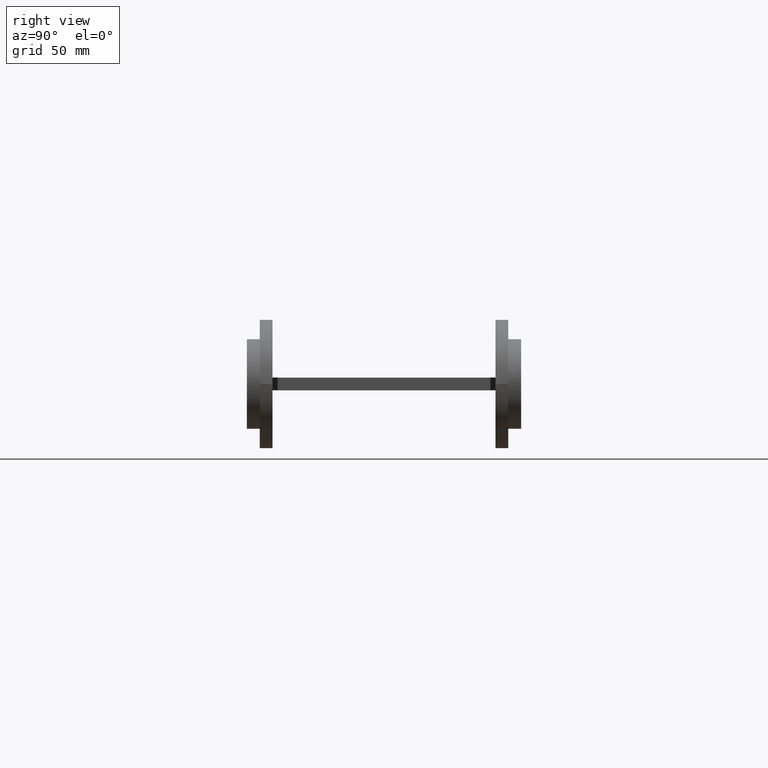
[diagram: clean part render]
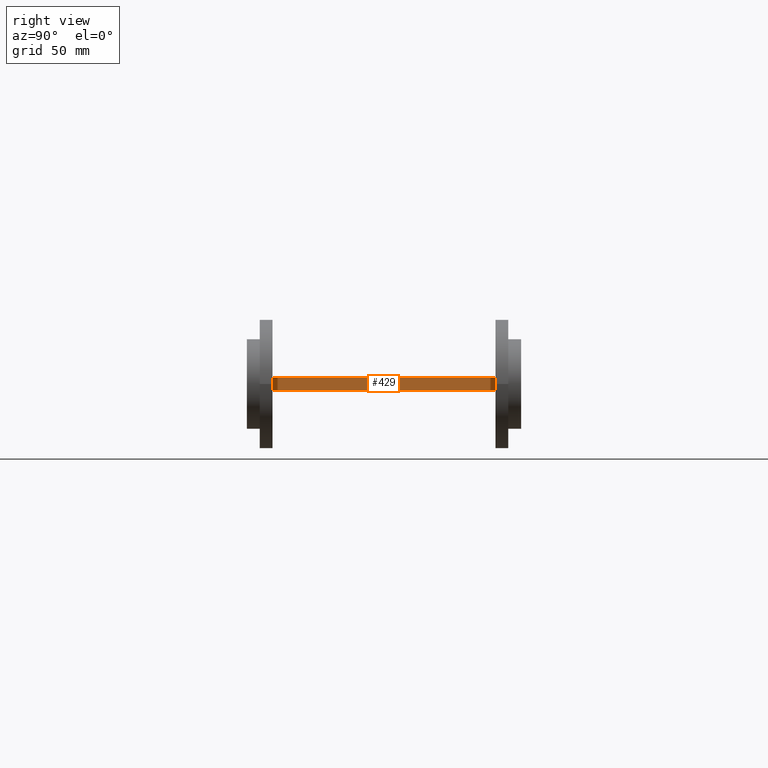
[diagram: same view with one face highlighted and labeled with its STEP entity id]
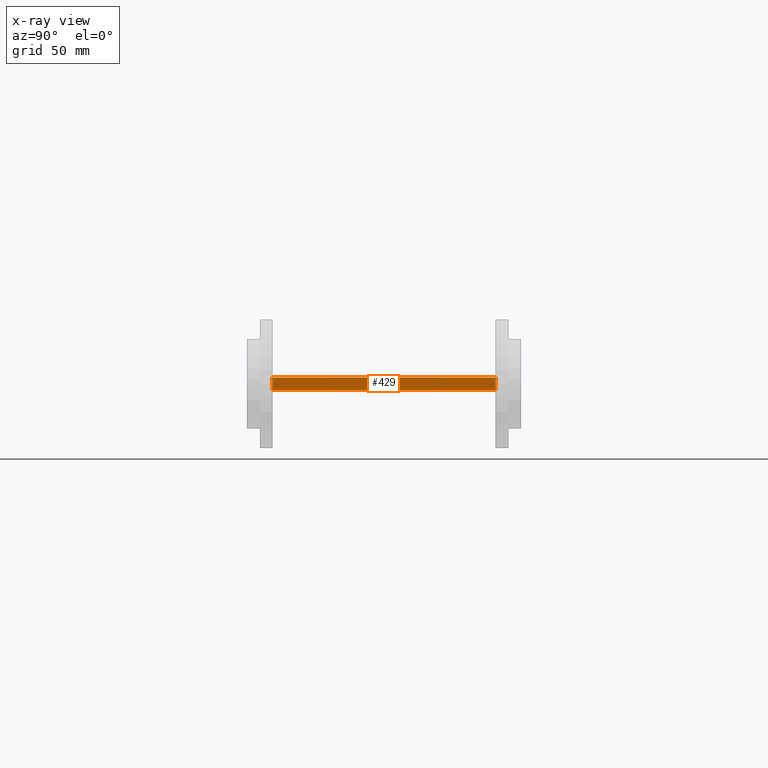
[diagram: x-ray of the same camera — body ghosted, the highlighted face saturated]
A machine part, right view. The second image highlights one B-rep face of the part: STEP entity #429.
The next image is the same camera in x-ray: the body ghosted, the highlighted face saturated — about 0% of this face is hidden behind the body in this view.
In plain terms, the highlighted planar face has unit normal (1, 0, 0).
Its self-contained STEP definition (entity closure, byte-faithful):
#24 = EDGE_CURVE ( 'NONE', #832, #152, #2248, .T. ) ;
#71 = ORIENTED_EDGE ( 'NONE', *, *, #24, .F. ) ;
#152 = VERTEX_POINT ( 'NONE', #2361 ) ;
#429 = ADVANCED_FACE ( 'NONE', ( #1191 ), #2078, .T. ) ;
#576 = VERTEX_POINT ( 'NONE', #1023 ) ;
#632 = DIRECTION ( 'NONE',  ( 0.000000000000000000, 0.000000000000000000, 1.000000000000000000 ) ) ;
#665 = CARTESIAN_POINT ( 'NONE',  ( 35.00000000000001421, -43.49999999999998579, 2.500000000000000000 ) ) ;
#770 = CARTESIAN_POINT ( 'NONE',  ( 35.00000000000000000, 43.50000000000001421, -2.500000000000000000 ) ) ;
#832 = VERTEX_POINT ( 'NONE', #665 ) ;
#849 = CARTESIAN_POINT ( 'NONE',  ( 35.00000000000000000, 43.50000000000001421, -2.500000000000000000 ) ) ;
#911 = DIRECTION ( 'NONE',  ( 0.000000000000000000, 0.000000000000000000, 1.000000000000000000 ) ) ;
#942 = CARTESIAN_POINT ( 'NONE',  ( 35.00000000000000000, 43.50000000000001421, -2.500000000000000000 ) ) ;
#947 = DIRECTION ( 'NONE',  ( 1.000000000000000000, 1.595148023886719315E-16, -0.000000000000000000 ) ) ;
#979 = CARTESIAN_POINT ( 'NONE',  ( 35.00000000000000000, 43.50000000000001421, -2.500000000000000000 ) ) ;
#1016 = EDGE_CURVE ( 'NONE', #576, #2362, #2690, .T. ) ;
#1023 = CARTESIAN_POINT ( 'NONE',  ( 35.00000000000001421, -43.49999999999998579, -2.500000000000000000 ) ) ;
#1087 = EDGE_CURVE ( 'NONE', #2362, #152, #2559, .T. ) ;
#1191 = FACE_OUTER_BOUND ( 'NONE', #2223, .T. ) ;
#1207 = DIRECTION ( 'NONE',  ( -1.595148023886719315E-16, 1.000000000000000000, 0.000000000000000000 ) ) ;
#1325 = VECTOR ( 'NONE', #632, 1000.000000000000000 ) ;
#1405 = LINE ( 'NONE', #2688, #2756 ) ;
#1448 = CARTESIAN_POINT ( 'NONE',  ( 35.00000000000000000, 43.50000000000001421, 2.500000000000000000 ) ) ;
#2062 = ORIENTED_EDGE ( 'NONE', *, *, #1016, .T. ) ;
#2078 = PLANE ( 'NONE',  #2494 ) ;
#2223 = EDGE_LOOP ( 'NONE', ( #71, #2406, #2062, #2735 ) ) ;
#2248 = LINE ( 'NONE', #1448, #2311 ) ;
#2269 = DIRECTION ( 'NONE',  ( -1.595148023886719315E-16, 1.000000000000000000, -0.000000000000000000 ) ) ;
#2293 = DIRECTION ( 'NONE',  ( -1.595148023886719315E-16, 1.000000000000000000, -0.000000000000000000 ) ) ;
#2311 = VECTOR ( 'NONE', #2293, 1000.000000000000000 ) ;
#2361 = CARTESIAN_POINT ( 'NONE',  ( 35.00000000000000000, 43.50000000000001421, 2.500000000000000000 ) ) ;
#2362 = VERTEX_POINT ( 'NONE', #942 ) ;
#2406 = ORIENTED_EDGE ( 'NONE', *, *, #2761, .F. ) ;
#2494 = AXIS2_PLACEMENT_3D ( 'NONE', #979, #947, #1207 ) ;
#2559 = LINE ( 'NONE', #849, #1325 ) ;
#2672 = VECTOR ( 'NONE', #2269, 1000.000000000000000 ) ;
#2688 = CARTESIAN_POINT ( 'NONE',  ( 35.00000000000001421, -43.49999999999998579, -2.500000000000000000 ) ) ;
#2690 = LINE ( 'NONE', #770, #2672 ) ;
#2735 = ORIENTED_EDGE ( 'NONE', *, *, #1087, .T. ) ;
#2756 = VECTOR ( 'NONE', #911, 1000.000000000000000 ) ;
#2761 = EDGE_CURVE ( 'NONE', #576, #832, #1405, .T. ) ;